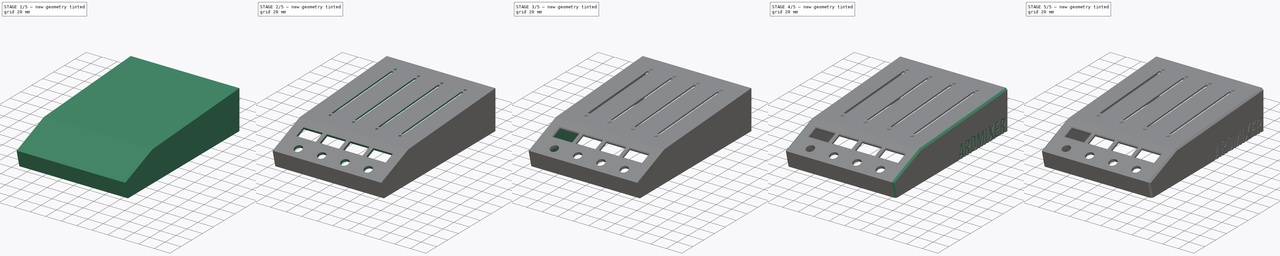
[diagram: build sequence overview — one tinted view per stage of 5, left to right]
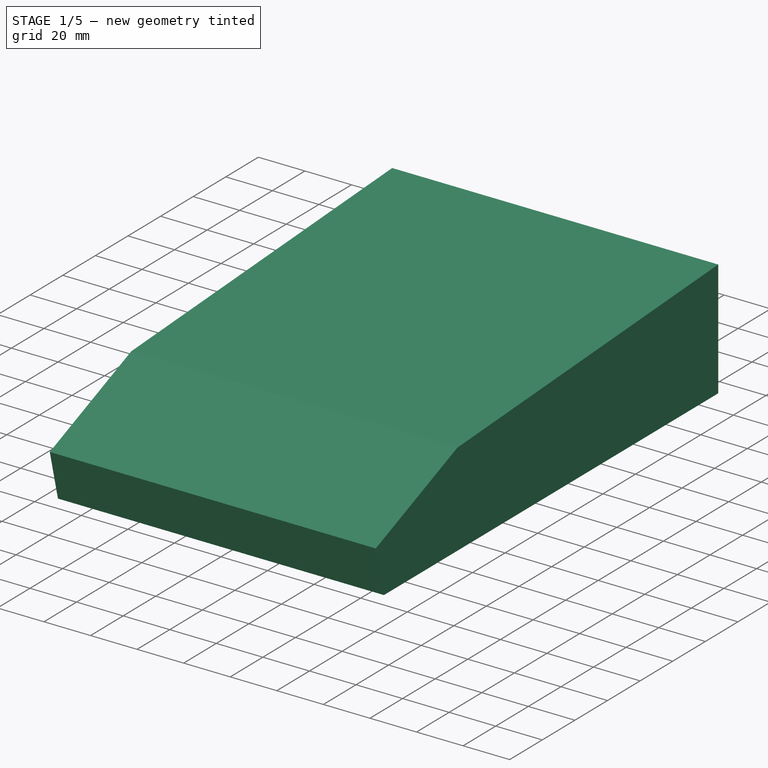
[diagram: stage 1 of 5 — iso view after this stage's code; geometry added in this stage tinted green]
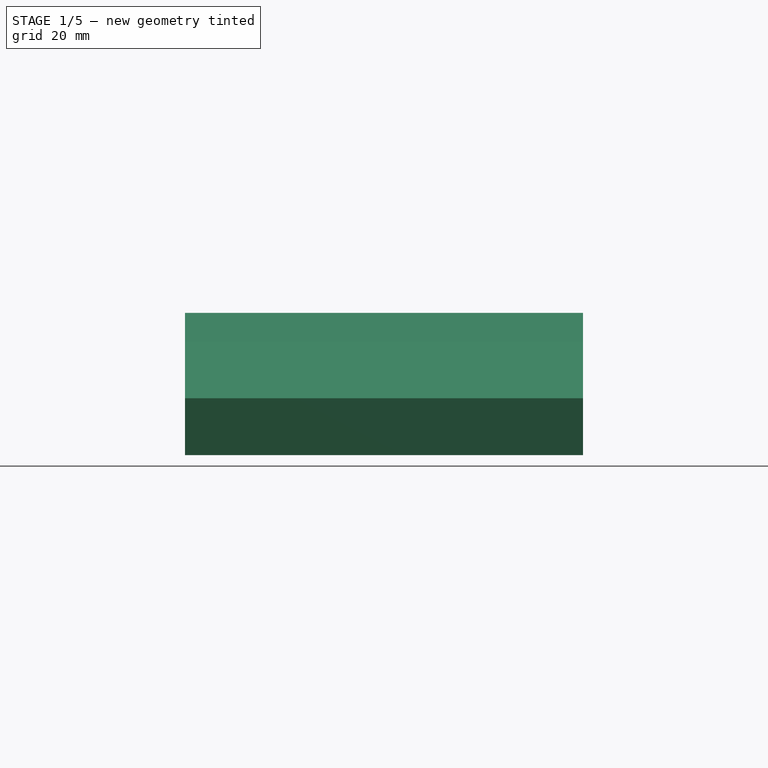
[diagram: stage 1 of 5 — front view after this stage's code; geometry added in this stage tinted green]
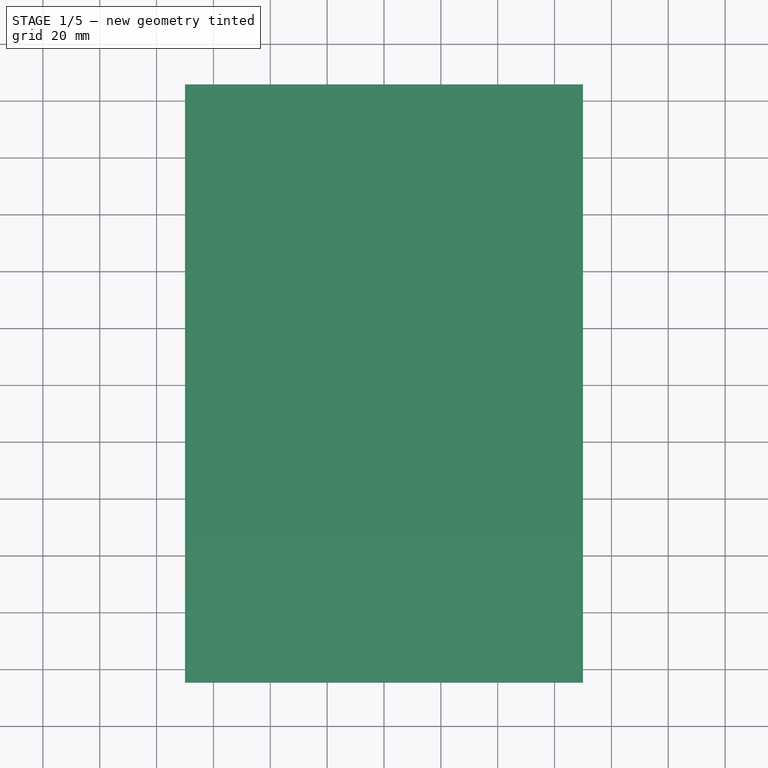
[diagram: stage 1 of 5 — top view after this stage's code; geometry added in this stage tinted green]
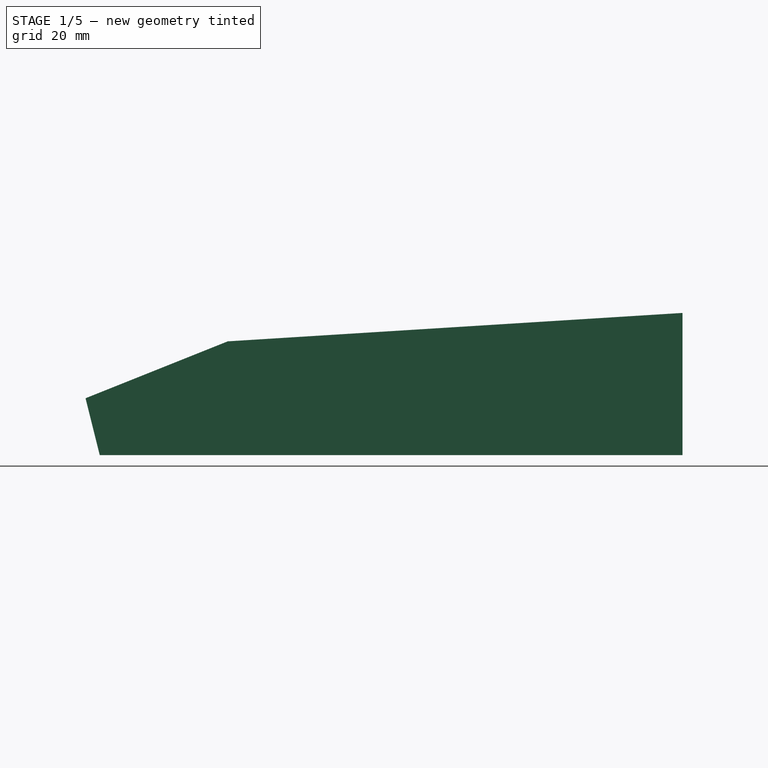
[diagram: stage 1 of 5 — right view after this stage's code; geometry added in this stage tinted green]
FCSTD DOCUMENT  (FreeCAD 0.19R24291 (Git))
Label: top_shell_v2
License: All rights reserved
LicenseURL: http://en.wikipedia.org/wiki/All_rights_reserved
objects: Sketcher::SketchObject×15, PartDesign::Pocket×13, PartDesign::Pad×4, PartDesign::Chamfer×3, Part::Part2DObjectPython×2, PartDesign::Fillet×1, PartDesign::Body×1
note: 60 computed .brp shape members not serialized (recipe doc carries the construction recipe); baked Part::Feature solids carry a one-line shape summary decoded from their .brp

FEATURE [Sketcher::SketchObject] Sketch
  FullyConstrained = true
  MapMode = 5
  Support = -> [XY_Plane]
  sketch-geometry (4):
    g0: LineSegment StartX=-70 StartY=105 StartZ=0 EndX=70 EndY=105 EndZ=0
    g1: LineSegment StartX=70 StartY=105 StartZ=0 EndX=70 EndY=-105 EndZ=0
    g2: LineSegment StartX=70 StartY=-105 StartZ=0 EndX=-70 EndY=-105 EndZ=0
    g3: LineSegment StartX=-70 StartY=-105 StartZ=0 EndX=-70 EndY=105 EndZ=0
  constraints (12):
    c: Coincident(g0,g1)
    c: Coincident(g1,g2)
    c: Coincident(g2,g3)
    c: Coincident(g3,g0)
    c: Horizontal(g0)
    c: Horizontal(g2)
    c: Vertical(g1)
    c: Vertical(g3)
    c: DistanceY(g1,g1) = 210
    c: DistanceX(g0,g0) = 140
    c: DistanceX(g0,g-1) = 70
    c: DistanceY(g-1,g0) = 105
FEATURE [PartDesign::Pad] Pad
  Direction = (1,1,1)
  Length = 50
  Length2 = 100
  Profile = -> Sketch
  Type = 0
FEATURE [Sketcher::SketchObject] Sketch001
  ExternalGeometry = -> [Pad]
  FullyConstrained = false
  MapMode = 5
  Placement = pos=(-70,0,0) rot=(0.57735,-0.57735,-0.57735;2.0944rad)
  Support = -> [Pad]
  sketch-geometry (4):
    g0: LineSegment StartX=-105 StartY=50 StartZ=0 EndX=55 EndY=40 EndZ=0
    g1: LineSegment StartX=55 StartY=40 StartZ=0 EndX=105 EndY=20 EndZ=0
    g2: LineSegment StartX=105 StartY=20 StartZ=0 EndX=105 EndY=50 EndZ=0
    g3: LineSegment StartX=105 StartY=50 StartZ=0 EndX=-105 EndY=50 EndZ=0
  constraints (10):
    c: Coincident(g0,g1)
    c: Coincident(g1,g2)
    c: Vertical(g2)
    c: Coincident(g2,g3)
    c: Coincident(g3,g0)
    c: Horizontal(g3)
    c: DistanceY(g0,g-3) = 0
    c: DistanceX(g-3,g0) = 0
    c: DistanceX(g2,g-4) = 0
    c: DistanceX(g0,g0) = 160
FEATURE [PartDesign::Pocket] Pocket
  BaseFeature = -> Pad
  Length = 5
  Length2 = 100
  Profile = -> Sketch001
  Type = 1
FEATURE [Sketcher::SketchObject] Sketch002
  ExternalGeometry = -> [Pocket]
  FullyConstrained = true
  MapMode = 5
  Placement = pos=(-70,0,0) rot=(0.57735,-0.57735,-0.57735;2.0944rad)
  Support = -> [Pocket]
  sketch-geometry (3):
    g0: LineSegment StartX=105 StartY=20 StartZ=0 EndX=100 EndY=0 EndZ=0
    g1: LineSegment StartX=100 StartY=0 StartZ=0 EndX=105 EndY=0 EndZ=0
    g2: LineSegment StartX=105 StartY=0 StartZ=0 EndX=105 EndY=20 EndZ=0
  constraints (7):
    c: Coincident(g0,g-3)
    c: PointOnObject(g0,g-1)
    c: Coincident(g0,g1)
    c: Coincident(g1,g-4)
    c: Coincident(g1,g2)
    c: Coincident(g2,g0)
    c: DistanceX(g1,g1) = 5
FEATURE [PartDesign::Pocket] Pocket001
  BaseFeature = -> Pocket
  Length = 5
  Length2 = 100
  Profile = -> Sketch002
  Type = 1
FEATURE [Sketcher::SketchObject] Sketch003
  ExternalGeometry = -> [Pocket001]
  FullyConstrained = false
  MapMode = 5
  Placement = pos=(-70,0,0) rot=(0.57735,-0.57735,-0.57735;2.0944rad)
  Support = -> [Pocket001]
  sketch-geometry (5):
    g0: LineSegment StartX=-105 StartY=46 StartZ=0 EndX=55 EndY=36 EndZ=0
    g1: LineSegment StartX=55 StartY=36 StartZ=0 EndX=100.455 EndY=17.8182 EndZ=0
    g2: LineSegment StartX=100.455 StartY=17.8182 StartZ=0 EndX=96 EndY=0 EndZ=0
    g3: LineSegment StartX=96 StartY=0 StartZ=0 EndX=-105 EndY=0 EndZ=0
    g4: LineSegment StartX=-105 StartY=0 StartZ=0 EndX=-105 EndY=46 EndZ=0
  constraints (13):
    c: DistanceX(g-3,g0) = 0
    c: Parallel(g-3,g0)
    c: Distance(g0,g-3) = 4
    c: Coincident(g1,g0)
    c: Parallel(g-4,g1)
    c: Coincident(g2,g1)
    c: PointOnObject(g2,g-6)
    c: Parallel(g2,g-5)
    c: Coincident(g3,g2)
    c: Coincident(g3,g-7)
    c: Coincident(g4,g3)
    c: Coincident(g4,g0)
    c: DistanceX(g2,g-6) = 4
FEATURE [PartDesign::Pocket] Pocket002
  BaseFeature = -> Pocket001
  Length = 136
  Length2 = 100
  Profile = -> Sketch003
  Type = 0
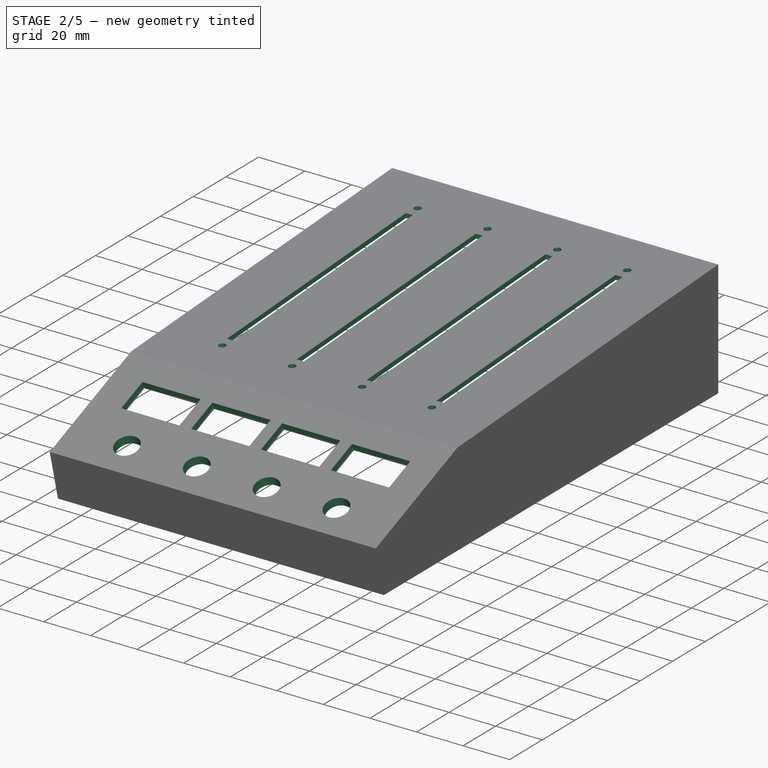
[diagram: stage 2 of 5 — iso view after this stage's code; geometry added in this stage tinted green]
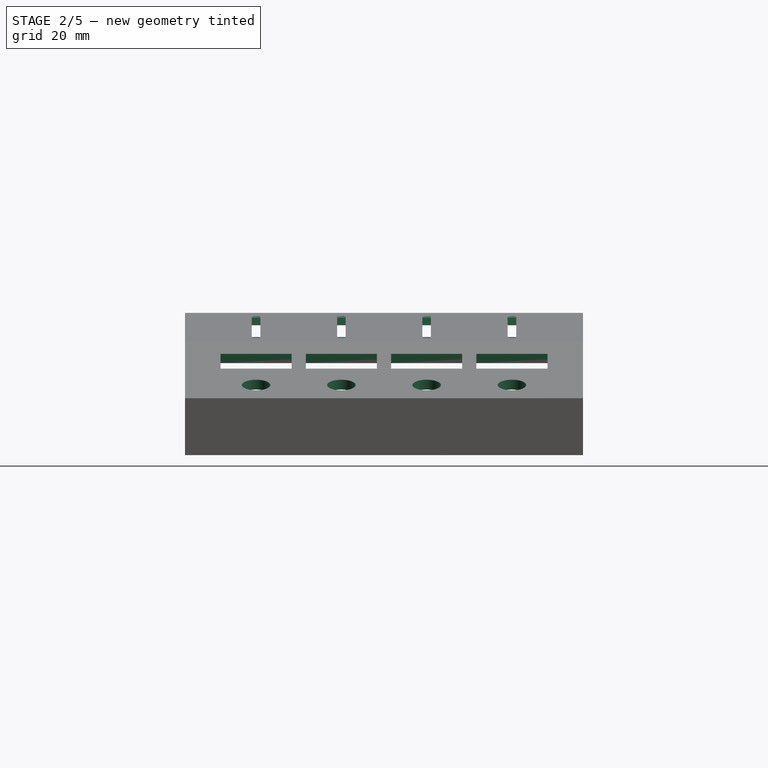
[diagram: stage 2 of 5 — front view after this stage's code; geometry added in this stage tinted green]
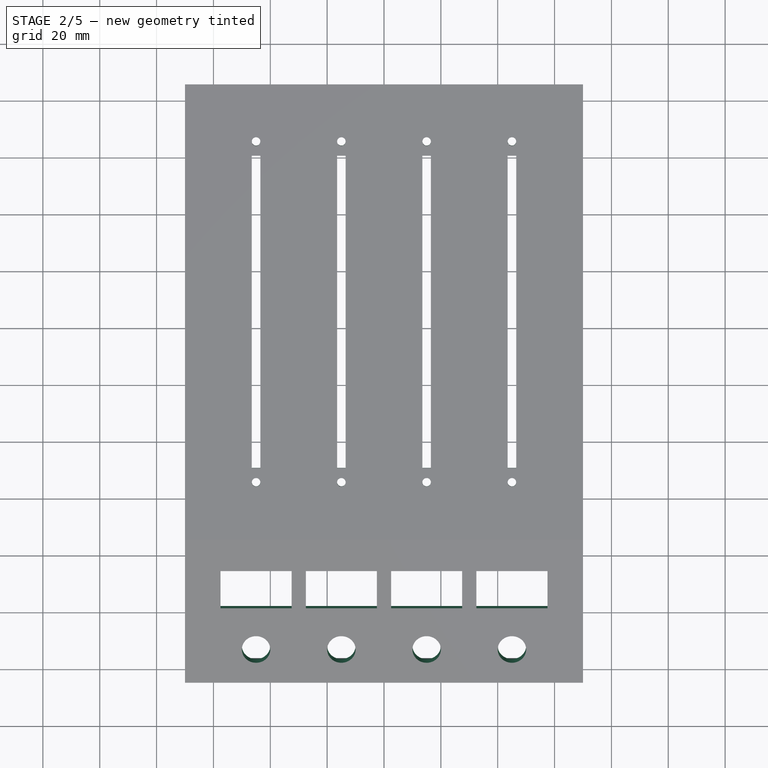
[diagram: stage 2 of 5 — top view after this stage's code; geometry added in this stage tinted green]
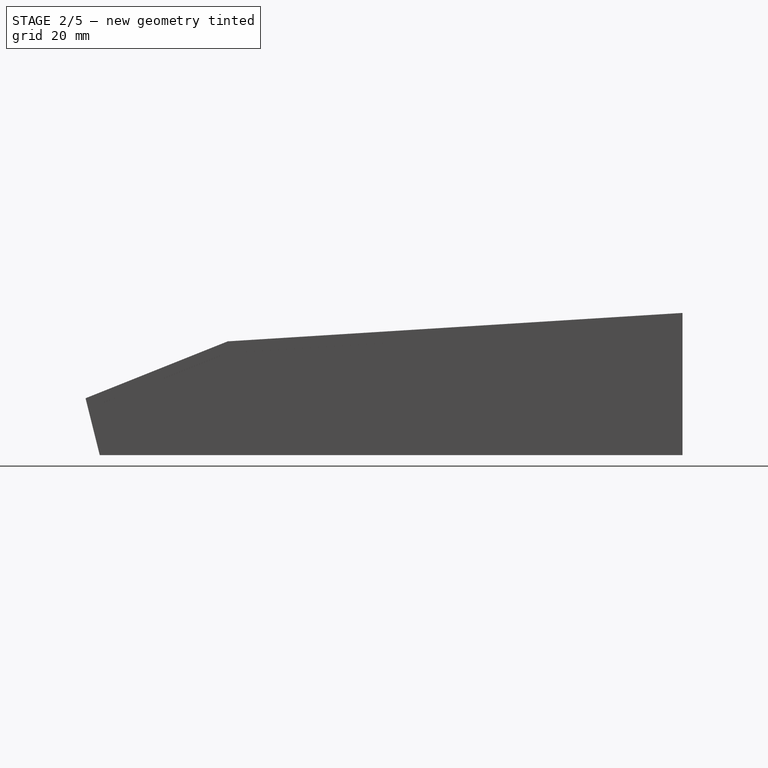
[diagram: stage 2 of 5 — right view after this stage's code; geometry added in this stage tinted green]
FEATURE [Sketcher::SketchObject] Sketch004
  ExternalGeometry = -> [Pocket002]
  FullyConstrained = true
  MapMode = 5
  Placement = pos=(0,-2.70428,43.2685) rot=(1,0,0;0.062419rad)
  Support = -> [Pocket002]
  sketch-geometry (31):
    g0: GeomPoint X=0 Y=27.7583 Z=0
    g1: GeomPoint X=0 Y=107.914 Z=0
    g2: GeomPoint X=0 Y=-52.3978 Z=0
    g3: GeomPoint X=15 Y=27.7583 Z=0
    g4: GeomPoint X=45 Y=27.7583 Z=0
    g5: GeomPoint X=-15 Y=27.7583 Z=0
    g6: GeomPoint X=-45 Y=27.7583 Z=0
    g7: LineSegment StartX=-46.5 StartY=82.7583 StartZ=0 EndX=-43.5 EndY=82.7583 EndZ=0
    g8: LineSegment StartX=-43.5 StartY=82.7583 StartZ=0 EndX=-43.5 EndY=-27.2417 EndZ=0
    g9: LineSegment StartX=-43.5 StartY=-27.2417 StartZ=0 EndX=-46.5 EndY=-27.2417 EndZ=0
    g10: LineSegment StartX=-46.5 StartY=-27.2417 StartZ=0 EndX=-46.5 EndY=82.7583 EndZ=0
    g11: LineSegment StartX=-16.5 StartY=82.7583 StartZ=0 EndX=-13.5 EndY=82.7583 EndZ=0
    g12: LineSegment StartX=-13.5 StartY=82.7583 StartZ=0 EndX=-13.5 EndY=-27.2417 EndZ=0
    g13: LineSegment StartX=-13.5 StartY=-27.2417 StartZ=0 EndX=-16.5 EndY=-27.2417 EndZ=0
    g14: LineSegment StartX=-16.5 StartY=-27.2417 StartZ=0 EndX=-16.5 EndY=82.7583 EndZ=0
    g15: LineSegment StartX=13.5 StartY=82.7583 StartZ=0 EndX=16.5 EndY=82.7583 EndZ=0
    g16: LineSegment StartX=16.5 StartY=82.7583 StartZ=0 EndX=16.5 EndY=-27.2417 EndZ=0
    g17: LineSegment StartX=16.5 StartY=-27.2417 StartZ=0 EndX=13.5 EndY=-27.2417 EndZ=0
    g18: LineSegment StartX=13.5 StartY=-27.2417 StartZ=0 EndX=13.5 EndY=82.7583 EndZ=0
    g19: LineSegment StartX=43.5 StartY=82.7583 StartZ=0 EndX=46.5 EndY=82.7583 EndZ=0
    g20: LineSegment StartX=46.5 StartY=82.7583 StartZ=0 EndX=46.5 EndY=-27.2417 EndZ=0
    g21: LineSegment StartX=46.5 StartY=-27.2417 StartZ=0 EndX=43.5 EndY=-27.2417 EndZ=0
    g22: LineSegment StartX=43.5 StartY=-27.2417 StartZ=0 EndX=43.5 EndY=82.7583 EndZ=0
    g23: Circle CenterX=-45 CenterY=87.7583 CenterZ=0 NormalX=0 NormalY=0 NormalZ=1 AngleXU=0 Radius=1.5
    g24: Circle CenterX=-15 CenterY=87.7583 CenterZ=0 NormalX=0 NormalY=0 NormalZ=1 AngleXU=0 Radius=1.5
    g25: Circle CenterX=15 CenterY=87.7583 CenterZ=0 NormalX=0 NormalY=0 NormalZ=1 AngleXU=0 Radius=1.5
    g26: Circle CenterX=45 CenterY=87.7583 CenterZ=0 NormalX=0 NormalY=0 NormalZ=1 AngleXU=0 Radius=1.5
    g27: Circle CenterX=-45 CenterY=-32.2417 CenterZ=0 NormalX=0 NormalY=0 NormalZ=1 AngleXU=0 Radius=1.5
    g28: Circle CenterX=-15 CenterY=-32.2417 CenterZ=0 NormalX=0 NormalY=0 NormalZ=1 AngleXU=0 Radius=1.5
    g29: Circle CenterX=15 CenterY=-32.2417 CenterZ=0 NormalX=0 NormalY=0 NormalZ=1 AngleXU=0 Radius=1.5
    g30: Circle CenterX=45 CenterY=-32.2417 CenterZ=0 NormalX=0 NormalY=0 NormalZ=1 AngleXU=0 Radius=1.5
  constraints (85):
    c: PointOnObject(g0,g-2)
    c: PointOnObject(g1,g-3)
    c: PointOnObject(g2,g-4)
    c: PointOnObject(g2,g-2)
    c: Symmetric(g1,g2,g0)
    c: DistanceY(g3,g0) = 0
    c: DistanceY(g4,g3) = 0
    c: DistanceY(g5,g0) = 0
    c: DistanceY(g6,g5) = 0
    c: DistanceX(g3,g4) = 30
    c: DistanceX(g0,g3) = 15
    c: DistanceX(g5,g0) = 15
    c: DistanceX(g6,g5) = 30
    c: Coincident(g7,g8)
    c: Coincident(g8,g9)
    c: Coincident(g9,g10)
    c: Coincident(g10,g7)
    c: Horizontal(g7)
    c: Horizontal(g9)
    c: Vertical(g8)
    c: Vertical(g10)
    c: Coincident(g11,g12)
    c: Coincident(g12,g13)
    c: Coincident(g13,g14)
    c: Coincident(g14,g11)
    c: Horizontal(g11)
    c: Horizontal(g13)
    c: Vertical(g12)
    c: Vertical(g14)
    c: Coincident(g15,g16)
    c: Coincident(g16,g17)
    c: Coincident(g17,g18)
    c: Coincident(g18,g15)
    c: Horizontal(g15)
    c: Horizontal(g17)
    c: Vertical(g16)
    c: Vertical(g18)
    c: Coincident(g19,g20)
    c: Coincident(g20,g21)
    c: Coincident(g21,g22)
    c: Coincident(g22,g19)
    c: Horizontal(g19)
    c: Horizontal(g21)
    c: Vertical(g20)
    c: Vertical(g22)
    c: DistanceY(g6,g23) = 60
    c: DistanceY(g5,g24) = 60
    c: DistanceY(g3,g25) = 60
    c: DistanceY(g4,g26) = 60
    c: DistanceY(g30,g4) = 60
    c: DistanceY(g29,g3) = 60
    c: DistanceY(g28,g5) = 60
    c: DistanceY(g27,g6) = 60
    c: DistanceX(g23,g6) = 0
    c: DistanceX(g6,g27) = 0
    c: DistanceX(g28,g5) = 0
    c: DistanceX(g24,g5) = 0
    c: DistanceX(g25,g3) = 0
    c: DistanceX(g3,g29) = 0
    c: DistanceX(g30,g4) = 0
    c: DistanceX(g4,g26) = 0
    c: Diameter(g26) = 3
    c: Diameter(g25) = 3
    c: Diameter(g24) = 3
    c: Diameter(g23) = 3
    c: Diameter(g27) = 3
    c: Diameter(g28) = 3
    c: Diameter(g29) = 3
    c: Diameter(g30) = 3
    c: DistanceX(g7,g6) = 1.5
    c: DistanceX(g11,g5) = 1.5
    c: DistanceX(g15,g3) = 1.5
    c: DistanceX(g19,g4) = 1.5
    c: DistanceY(g13,g5) = 55
    c: DistanceY(g9,g6) = 55
    c: DistanceY(g6,g7) = 55
    c: DistanceY(g5,g11) = 55
    c: DistanceY(g3,g15) = 55
    c: DistanceY(g17,g3) = 55
    c: DistanceY(g21,g4) = 55
    c: DistanceY(g4,g19) = 55
    c: DistanceX(g19,g19) = 3
    c: DistanceX(g15,g15) = 3
    c: DistanceX(g11,g11) = 3
    c: DistanceX(g7,g7) = 3
FEATURE [PartDesign::Pocket] Pocket003
  BaseFeature = -> Pocket002
  Length = 5
  Length2 = 100
  Profile = -> Sketch004
  Type = 1
FEATURE [Sketcher::SketchObject] Sketch005
  ExternalGeometry = -> [Pocket003]
  FullyConstrained = true
  MapMode = 5
  Placement = pos=(0,-2.45525,39.284) rot=(1,0,0;3.20401rad)
  Support = -> [Pocket003]
  sketch-geometry (21):
    g0: GeomPoint X=0 Y=-27.7583 Z=0
    g1: GeomPoint X=15 Y=-27.7583 Z=0
    g2: GeomPoint X=45 Y=-27.7583 Z=0
    g3: GeomPoint X=-15 Y=-27.7583 Z=0
    g4: GeomPoint X=-45 Y=-27.7583 Z=0
    g5: LineSegment StartX=-54.5 StartY=45.2417 StartZ=0 EndX=-35.5 EndY=45.2417 EndZ=0
    g6: LineSegment StartX=-35.5 StartY=45.2417 StartZ=0 EndX=-35.5 EndY=-102.258 EndZ=0
    g7: LineSegment StartX=-35.5 StartY=-102.258 StartZ=0 EndX=-54.5 EndY=-102.258 EndZ=0
    g8: LineSegment StartX=-54.5 StartY=-102.258 StartZ=0 EndX=-54.5 EndY=45.2417 EndZ=0
    g9: LineSegment StartX=-24.5 StartY=45.2417 StartZ=0 EndX=-5.5 EndY=45.2417 EndZ=0
    g10: LineSegment StartX=-5.5 StartY=45.2417 StartZ=0 EndX=-5.5 EndY=-102.258 EndZ=0
    g11: LineSegment StartX=-5.5 StartY=-102.258 StartZ=0 EndX=-24.5 EndY=-102.258 EndZ=0
    g12: LineSegment StartX=-24.5 StartY=-102.258 StartZ=0 EndX=-24.5 EndY=45.2417 EndZ=0
    g13: LineSegment StartX=5.5 StartY=45.2417 StartZ=0 EndX=24.5 EndY=45.2417 EndZ=0
    g14: LineSegment StartX=24.5 StartY=45.2417 StartZ=0 EndX=24.5 EndY=-102.258 EndZ=0
    g15: LineSegment StartX=24.5 StartY=-102.258 StartZ=0 EndX=5.5 EndY=-102.258 EndZ=0
    g16: LineSegment StartX=5.5 StartY=-102.258 StartZ=0 EndX=5.5 EndY=45.2417 EndZ=0
    g17: LineSegment StartX=35.5 StartY=45.2417 StartZ=0 EndX=54.5 EndY=45.2417 EndZ=0
    g18: LineSegment StartX=54.5 StartY=45.2417 StartZ=0 EndX=54.5 EndY=-102.258 EndZ=0
    g19: LineSegment StartX=54.5 StartY=-102.258 StartZ=0 EndX=35.5 EndY=-102.258 EndZ=0
    g20: LineSegment StartX=35.5 StartY=-102.258 StartZ=0 EndX=35.5 EndY=45.2417 EndZ=0
  constraints (58):
    c: PointOnObject(g0,g-2)
    c: DistanceY(g0,g-4) = 55
    c: DistanceX(g0,g1) = 15
    c: DistanceX(g1,g2) = 30
    c: DistanceX(g3,g0) = 15
    c: DistanceX(g4,g3) = 30
    c: DistanceY(g3,g0) = 0
    c: DistanceY(g1,g0) = 0
    c: DistanceY(g1,g2) = 0
    c: DistanceY(g3,g4) = 0
    c: Coincident(g5,g6)
    c: Coincident(g6,g7)
    c: Coincident(g7,g8)
    c: Coincident(g8,g5)
    c: Horizontal(g5)
    c: Horizontal(g7)
    c: Vertical(g6)
    c: Vertical(g8)
    c: Coincident(g9,g10)
    c: Coincident(g10,g11)
    c: Coincident(g11,g12)
    c: Coincident(g12,g9)
    c: Horizontal(g9)
    c: Horizontal(g11)
    c: Vertical(g10)
    c: Vertical(g12)
    c: Coincident(g13,g14)
    c: Coincident(g14,g15)
    c: Coincident(g15,g16)
    c: Coincident(g16,g13)
    c: Horizontal(g13)
    c: Horizontal(g15)
    c: Vertical(g14)
    c: Vertical(g16)
    c: Coincident(g17,g18)
    c: Coincident(g18,g19)
    c: Coincident(g19,g20)
    c: Coincident(g20,g17)
    c: Horizontal(g17)
    c: Horizontal(g19)
    c: Vertical(g18)
    c: Vertical(g20)
    c: DistanceX(g13,g1) = 9.5
    c: DistanceX(g17,g2) = 9.5
    c: DistanceX(g9,g3) = 9.5
    c: DistanceX(g5,g4) = 9.5
    c: DistanceX(g5,g5) = 19
    c: DistanceX(g9,g9) = 19
    c: DistanceX(g13,g13) = 19
    c: DistanceX(g17,g17) = 19
    c: DistanceY(g18,g2) = 74.5
    c: DistanceY(g14,g1) = 74.5
    c: DistanceY(g10,g3) = 74.5
    c: DistanceY(g6,g4) = 74.5
    c: DistanceY(g4,g5) = 73
    c: DistanceY(g3,g9) = 73
    c: DistanceY(g1,g13) = 73
    c: DistanceY(g2,g17) = 73
FEATURE [PartDesign::Pocket] Pocket004
  BaseFeature = -> Pocket003
  Length = 2
  Length2 = 100
  Profile = -> Sketch005
  Type = 0
FEATURE [Sketcher::SketchObject] Sketch006
  ExternalGeometry = -> [Pocket004]
  FullyConstrained = true
  MapMode = 5
  Placement = pos=(0,-21.3793,53.4483) rot=(1,0,0;0.380506rad)
  Support = -> [Pocket004]
  sketch-geometry (29):
    g0: GeomPoint X=0 Y=-77.5622 Z=0
    g1: GeomPoint X=15 Y=-77.5622 Z=0
    g2: GeomPoint X=45 Y=-77.5622 Z=0
    g3: GeomPoint X=-15 Y=-77.5622 Z=0
    g4: GeomPoint X=-45 Y=-77.5622 Z=0
    g5: Circle CenterX=-45 CenterY=-77.5622 CenterZ=0 NormalX=0 NormalY=0 NormalZ=1 AngleXU=0 Radius=5
    g6: Circle CenterX=-15 CenterY=-77.5622 CenterZ=0 NormalX=0 NormalY=0 NormalZ=1 AngleXU=0 Radius=5
    g7: Circle CenterX=15 CenterY=-77.5622 CenterZ=0 NormalX=0 NormalY=0 NormalZ=1 AngleXU=0 Radius=5
    g8: Circle CenterX=45 CenterY=-77.5622 CenterZ=0 NormalX=0 NormalY=0 NormalZ=1 AngleXU=0 Radius=5
    g9: GeomPoint X=-45 Y=-55.0622 Z=0
    g10: GeomPoint X=-15 Y=-55.0622 Z=0
    g11: GeomPoint X=15 Y=-55.0622 Z=0
    g12: GeomPoint X=45 Y=-55.0622 Z=0
    g13: LineSegment StartX=-57.5 StartY=-48.0622 StartZ=0 EndX=-32.5 EndY=-48.0622 EndZ=0
    g14: LineSegment StartX=-32.5 StartY=-48.0622 StartZ=0 EndX=-32.5 EndY=-62.0622 EndZ=0
    g15: LineSegment StartX=-32.5 StartY=-62.0622 StartZ=0 EndX=-57.5 EndY=-62.0622 EndZ=0
    g16: LineSegment StartX=-57.5 StartY=-62.0622 StartZ=0 EndX=-57.5 EndY=-48.0622 EndZ=0
    g17: LineSegment StartX=-27.5 StartY=-48.0622 StartZ=0 EndX=-2.5 EndY=-48.0622 EndZ=0
    g18: LineSegment StartX=-2.5 StartY=-48.0622 StartZ=0 EndX=-2.5 EndY=-62.0622 EndZ=0
    g19: LineSegment StartX=-2.5 StartY=-62.0622 StartZ=0 EndX=-27.5 EndY=-62.0622 EndZ=0
    g20: LineSegment StartX=-27.5 StartY=-62.0622 StartZ=0 EndX=-27.5 EndY=-48.0622 EndZ=0
    g21: LineSegment StartX=2.5 StartY=-48.0622 StartZ=0 EndX=27.5 EndY=-48.0622 EndZ=0
    g22: LineSegment StartX=27.5 StartY=-48.0622 StartZ=0 EndX=27.5 EndY=-62.0622 EndZ=0
    g23: LineSegment StartX=27.5 StartY=-62.0622 StartZ=0 EndX=2.5 EndY=-62.0622 EndZ=0
    g24: LineSegment StartX=2.5 StartY=-62.0622 StartZ=0 EndX=2.5 EndY=-48.0622 EndZ=0
    g25: LineSegment StartX=32.5 StartY=-48.0622 StartZ=0 EndX=57.5 EndY=-48.0622 EndZ=0
    g26: LineSegment StartX=57.5 StartY=-48.0622 StartZ=0 EndX=57.5 EndY=-62.0622 EndZ=0
    g27: LineSegment StartX=57.5 StartY=-62.0622 StartZ=0 EndX=32.5 EndY=-62.0622 EndZ=0
    g28: LineSegment StartX=32.5 StartY=-62.0622 StartZ=0 EndX=32.5 EndY=-48.0622 EndZ=0
  constraints (74):
    c: PointOnObject(g0,g-2)
    c: DistanceX(g3,g0) = 15
    c: DistanceX(g4,g3) = 30
    c: DistanceX(g0,g1) = 15
    c: DistanceX(g1,g2) = 30
    c: DistanceY(g1,g0) = 0
    c: DistanceY(g1,g2) = 0
    c: DistanceY(g3,g0) = 0
    c: DistanceY(g3,g4) = 0
    c: Coincident(g5,g4)
    c: Coincident(g6,g3)
    c: Coincident(g7,g1)
    c: Coincident(g8,g2)
    c: Diameter(g8) = 10
    c: Diameter(g7) = 10
    c: Diameter(g6) = 10
    c: Diameter(g5) = 10
    c: DistanceY(g5,g9) = 22.5
    c: DistanceY(g9,g10) = 0
    c: DistanceY(g10,g11) = 0
    c: DistanceY(g11,g12) = 0
    c: DistanceX(g9,g5) = 0
    c: DistanceX(g9,g10) = 30
    c: DistanceX(g10,g11) = 30
    c: DistanceX(g11,g12) = 30
    c: Coincident(g13,g14)
    c: Coincident(g14,g15)
    c: Coincident(g15,g16)
    c: Coincident(g16,g13)
    c: Horizontal(g13)
    c: Horizontal(g15)
    c: Vertical(g14)
    c: Vertical(g16)
    c: Coincident(g17,g18)
    c: Coincident(g18,g19)
    c: Coincident(g19,g20)
    c: Coincident(g20,g17)
    c: Horizontal(g17)
    c: Horizontal(g19)
    c: Vertical(g18)
    c: Vertical(g20)
    c: Coincident(g21,g22)
    c: Coincident(g22,g23)
    c: Coincident(g23,g24)
    c: Coincident(g24,g21)
    c: Horizontal(g21)
    c: Horizontal(g23)
    c: Vertical(g22)
    c: Vertical(g24)
    c: Coincident(g25,g26)
    c: Coincident(g26,g27)
    c: Coincident(g27,g28)
    c: Coincident(g28,g25)
    c: Horizontal(g25)
    c: Horizontal(g27)
    c: Vertical(g26)
    c: Vertical(g28)
    c: DistanceX(g13,g9) = 12.5
    c: DistanceX(g17,g10) = 12.5
    c: DistanceX(g21,g11) = 12.5
    c: DistanceX(g25,g12) = 12.5
    c: DistanceX(g21,g21) = 25
    c: DistanceX(g25,g25) = 25
    c: DistanceX(g17,g17) = 25
    c: DistanceX(g13,g13) = 25
    c: DistanceY(g9,g13) = 7
    c: DistanceY(g10,g17) = 7
    c: DistanceY(g11,g21) = 7
    c: DistanceY(g12,g25) = 7
    c: DistanceY(g16,g16) = 14
    c: DistanceY(g20,g20) = 14
    c: DistanceY(g24,g24) = 14
    c: DistanceY(g28,g28) = 14
    c: Distance(g0,g-3) = 12.5
FEATURE [PartDesign::Pocket] Pocket005
  BaseFeature = -> Pocket004
  Length = 5
  Length2 = 100
  Profile = -> Sketch006
  Type = 1
FEATURE [Sketcher::SketchObject] Sketch007
  ExternalGeometry = -> [Pocket005]
  FullyConstrained = true
  MapMode = 5
  Placement = pos=(0,-20,50) rot=(1,0,0;3.5221rad)
  Support = -> [Pocket005]
  sketch-geometry (21):
    g0: GeomPoint X=0 Y=55.0622 Z=0
    g1: GeomPoint X=15 Y=55.0622 Z=0
    g2: GeomPoint X=45 Y=55.0622 Z=0
    g3: GeomPoint X=-15 Y=55.0622 Z=0
    g4: GeomPoint X=-45 Y=55.0622 Z=0
    g5: LineSegment StartX=58 StartY=47.5622 StartZ=0 EndX=32 EndY=47.5622 EndZ=0
    g6: LineSegment StartX=32 StartY=47.5622 StartZ=0 EndX=32 EndY=65.5622 EndZ=0
    g7: LineSegment StartX=32 StartY=65.5622 StartZ=0 EndX=58 EndY=65.5622 EndZ=0
    g8: LineSegment StartX=58 StartY=65.5622 StartZ=0 EndX=58 EndY=47.5622 EndZ=0
    g9: LineSegment StartX=28 StartY=47.5622 StartZ=0 EndX=2 EndY=47.5622 EndZ=0
    g10: LineSegment StartX=2 StartY=47.5622 StartZ=0 EndX=2 EndY=65.5622 EndZ=0
    g11: LineSegment StartX=2 StartY=65.5622 StartZ=0 EndX=28 EndY=65.5622 EndZ=0
    g12: LineSegment StartX=28 StartY=65.5622 StartZ=0 EndX=28 EndY=47.5622 EndZ=0
    g13: LineSegment StartX=-2 StartY=47.5622 StartZ=0 EndX=-28 EndY=47.5622 EndZ=0
    g14: LineSegment StartX=-28 StartY=47.5622 StartZ=0 EndX=-28 EndY=65.5622 EndZ=0
    g15: LineSegment StartX=-28 StartY=65.5622 StartZ=0 EndX=-2 EndY=65.5622 EndZ=0
    g16: LineSegment StartX=-2 StartY=65.5622 StartZ=0 EndX=-2 EndY=47.5622 EndZ=0
    g17: LineSegment StartX=-32 StartY=47.5622 StartZ=0 EndX=-58 EndY=47.5622 EndZ=0
    g18: LineSegment StartX=-58 StartY=47.5622 StartZ=0 EndX=-58 EndY=65.5622 EndZ=0
    g19: LineSegment StartX=-58 StartY=65.5622 StartZ=0 EndX=-32 EndY=65.5622 EndZ=0
    g20: LineSegment StartX=-32 StartY=65.5622 StartZ=0 EndX=-32 EndY=47.5622 EndZ=0
  constraints (58):
    c: PointOnObject(g0,g-2)
    c: DistanceX(g3,g0) = 15
    c: DistanceX(g4,g3) = 30
    c: DistanceX(g0,g1) = 15
    c: DistanceX(g1,g2) = 30
    c: DistanceY(g0,g1) = 0
    c: DistanceY(g2,g1) = 0
    c: DistanceY(g0,g3) = 0
    c: DistanceY(g4,g3) = 0
    c: Coincident(g5,g6)
    c: Coincident(g6,g7)
    c: Coincident(g7,g8)
    c: Coincident(g8,g5)
    c: Horizontal(g5)
    c: Horizontal(g7)
    c: Vertical(g6)
    c: Vertical(g8)
    c: Coincident(g9,g10)
    c: Coincident(g10,g11)
    c: Coincident(g11,g12)
    c: Coincident(g12,g9)
    c: Horizontal(g9)
    c: Horizontal(g11)
    c: Vertical(g10)
    c: Vertical(g12)
    c: Coincident(g13,g14)
    c: Coincident(g14,g15)
    c: Coincident(g15,g16)
    c: Coincident(g16,g13)
    c: Horizontal(g13)
    c: Horizontal(g15)
    c: Vertical(g14)
    c: Vertical(g16)
    c: Coincident(g17,g18)
    c: Coincident(g18,g19)
    c: Coincident(g19,g20)
    c: Coincident(g20,g17)
    c: Horizontal(g17)
    c: Horizontal(g19)
    c: Vertical(g18)
    c: Vertical(g20)
    c: DistanceY(g2,g7) = 10.5
    c: DistanceY(g1,g11) = 10.5
    c: DistanceY(g3,g15) = 10.5
    c: DistanceY(g4,g19) = 10.5
    c: DistanceY(g-3,g0) = 7
    c: DistanceY(g5,g2) = 7.5
    c: DistanceY(g9,g1) = 7.5
    c: DistanceY(g13,g3) = 7.5
    c: DistanceY(g17,g4) = 7.5
    c: DistanceX(g18,g4) = 13
    c: DistanceX(g4,g19) = 13
    c: DistanceX(g14,g3) = 13
    c: DistanceX(g3,g15) = 13
    c: DistanceX(g10,g1) = 13
    c: DistanceX(g1,g11) = 13
    c: DistanceX(g6,g2) = 13
    c: DistanceX(g2,g7) = 13
FEATURE [PartDesign::Pocket] Pocket006
  BaseFeature = -> Pocket005
  Length = 1.5
  Length2 = 100
  Profile = -> Sketch007
  Type = 0
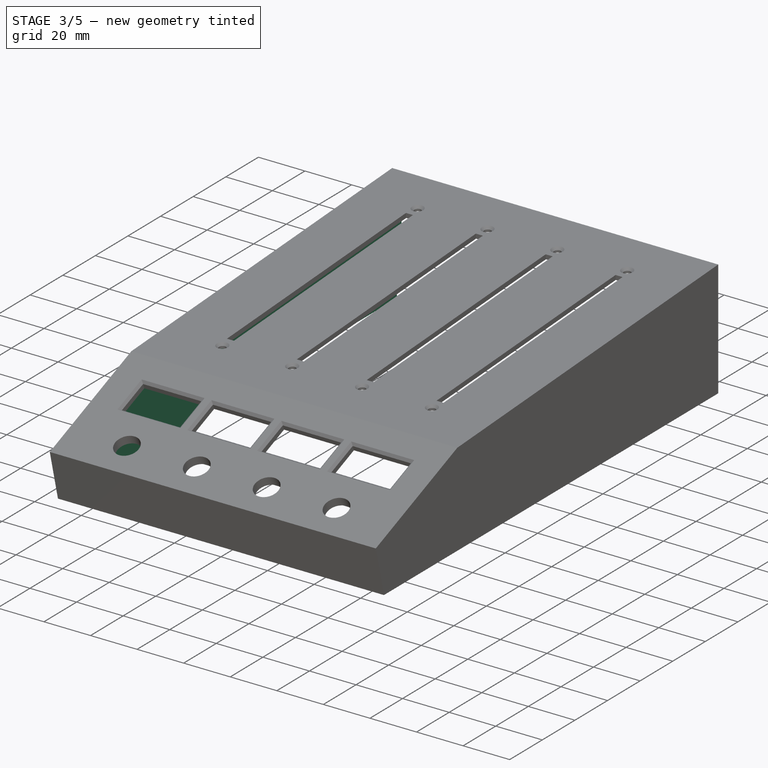
[diagram: stage 3 of 5 — iso view after this stage's code; geometry added in this stage tinted green]
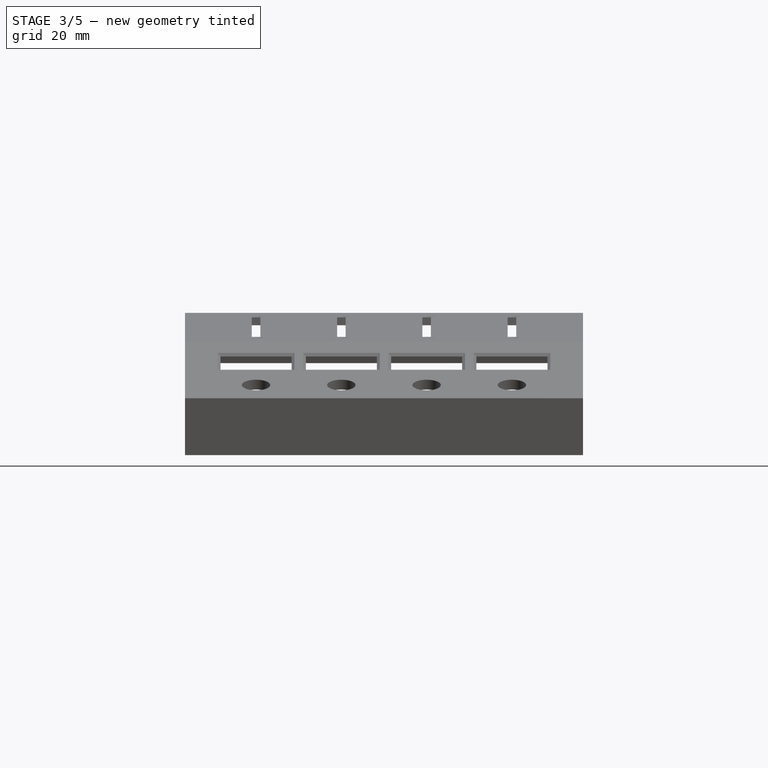
[diagram: stage 3 of 5 — front view after this stage's code; geometry added in this stage tinted green]
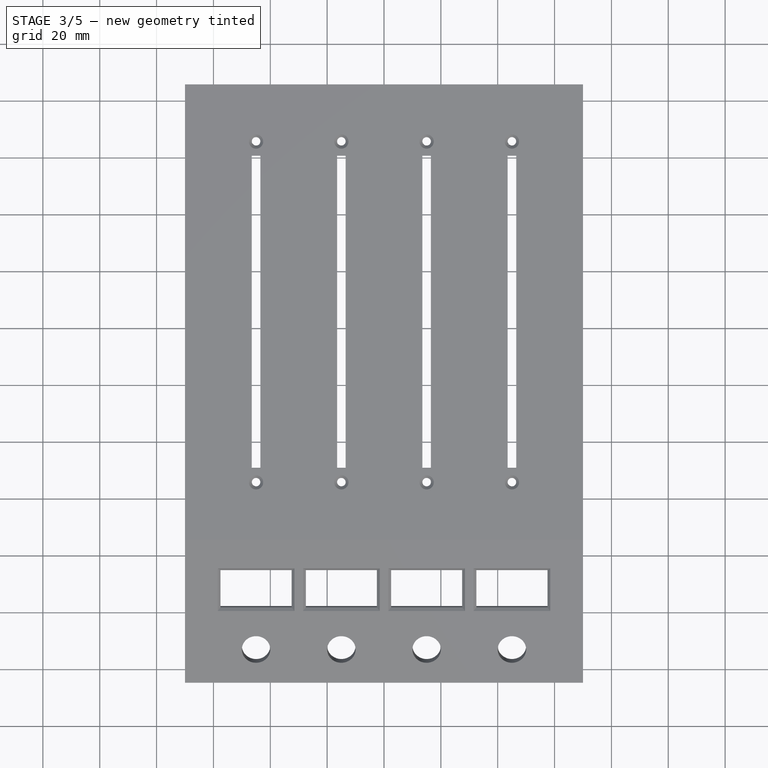
[diagram: stage 3 of 5 — top view after this stage's code; geometry added in this stage tinted green]
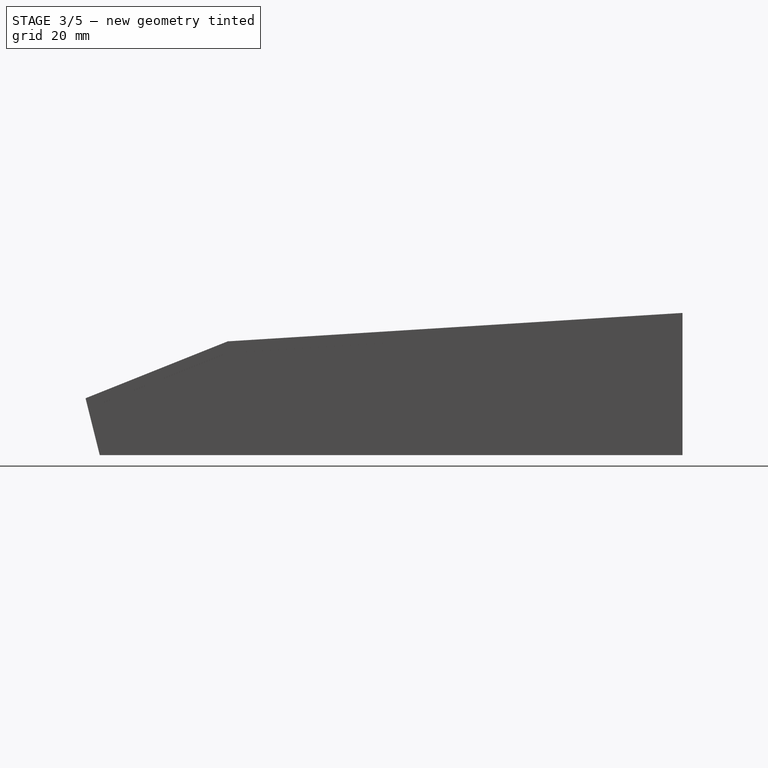
[diagram: stage 3 of 5 — right view after this stage's code; geometry added in this stage tinted green]
FEATURE [Sketcher::SketchObject] Sketch008
  ExternalGeometry = -> [Pocket006]
  FullyConstrained = true
  MapMode = 5
  Placement = pos=(0,-20,50) rot=(1,0,0;3.5221rad)
  Support = -> [Pocket006]
  sketch-geometry (32):
    g0: LineSegment StartX=51 StartY=41.5622 StartZ=0 EndX=39 EndY=41.5622 EndZ=0
    g1: LineSegment StartX=39 StartY=41.5622 StartZ=0 EndX=39 EndY=45.5622 EndZ=0
    g2: LineSegment StartX=39 StartY=45.5622 StartZ=0 EndX=51 EndY=45.5622 EndZ=0
    g3: LineSegment StartX=51 StartY=45.5622 StartZ=0 EndX=51 EndY=41.5622 EndZ=0
    g4: LineSegment StartX=21 StartY=41.5622 StartZ=0 EndX=9 EndY=41.5622 EndZ=0
    g5: LineSegment StartX=9 StartY=41.5622 StartZ=0 EndX=9 EndY=45.5622 EndZ=0
    g6: LineSegment StartX=9 StartY=45.5622 StartZ=0 EndX=21 EndY=45.5622 EndZ=0
    g7: LineSegment StartX=21 StartY=45.5622 StartZ=0 EndX=21 EndY=41.5622 EndZ=0
    g8: LineSegment StartX=-9 StartY=41.5622 StartZ=0 EndX=-21 EndY=41.5622 EndZ=0
    g9: LineSegment StartX=-21 StartY=41.5622 StartZ=0 EndX=-21 EndY=45.5622 EndZ=0
    g10: LineSegment StartX=-21 StartY=45.5622 StartZ=0 EndX=-9 EndY=45.5622 EndZ=0
    g11: LineSegment StartX=-9 StartY=45.5622 StartZ=0 EndX=-9 EndY=41.5622 EndZ=0
    g12: LineSegment StartX=-39 StartY=41.5622 StartZ=0 EndX=-51 EndY=41.5622 EndZ=0
    g13: LineSegment StartX=-51 StartY=41.5622 StartZ=0 EndX=-51 EndY=45.5622 EndZ=0
    g14: LineSegment StartX=-51 StartY=45.5622 StartZ=0 EndX=-39 EndY=45.5622 EndZ=0
    g15: LineSegment StartX=-39 StartY=45.5622 StartZ=0 EndX=-39 EndY=41.5622 EndZ=0
    g16: LineSegment StartX=22 StartY=65.5622 StartZ=0 EndX=8 EndY=65.5622 EndZ=0
    g17: LineSegment StartX=8 StartY=65.5622 StartZ=0 EndX=8 EndY=68.5622 EndZ=0
    g18: LineSegment StartX=8 StartY=68.5622 StartZ=0 EndX=22 EndY=68.5622 EndZ=0
    g19: LineSegment StartX=22 StartY=68.5622 StartZ=0 EndX=22 EndY=65.5622 EndZ=0
    g20: LineSegment StartX=52 StartY=65.5622 StartZ=0 EndX=38 EndY=65.5622 EndZ=0
    g21: LineSegment StartX=38 StartY=65.5622 StartZ=0 EndX=38 EndY=68.5622 EndZ=0
    g22: LineSegment StartX=38 StartY=68.5622 StartZ=0 EndX=52 EndY=68.5622 EndZ=0
    g23: LineSegment StartX=52 StartY=68.5622 StartZ=0 EndX=52 EndY=65.5622 EndZ=0
    g24: LineSegment StartX=-8 StartY=65.5622 StartZ=0 EndX=-22 EndY=65.5622 EndZ=0
    g25: LineSegment StartX=-22 StartY=65.5622 StartZ=0 EndX=-22 EndY=68.5622 EndZ=0
    g26: LineSegment StartX=-22 StartY=68.5622 StartZ=0 EndX=-8 EndY=68.5622 EndZ=0
    g27: LineSegment StartX=-8 StartY=68.5622 StartZ=0 EndX=-8 EndY=65.5622 EndZ=0
    g28: LineSegment StartX=-38 StartY=65.5622 StartZ=0 EndX=-52 EndY=65.5622 EndZ=0
    g29: LineSegment StartX=-52 StartY=65.5622 StartZ=0 EndX=-52 EndY=68.5622 EndZ=0
    g30: LineSegment StartX=-52 StartY=68.5622 StartZ=0 EndX=-38 EndY=68.5622 EndZ=0
    g31: LineSegment StartX=-38 StartY=68.5622 StartZ=0 EndX=-38 EndY=65.5622 EndZ=0
  constraints (96):
    c: Coincident(g0,g1)
    c: Coincident(g1,g2)
    c: Coincident(g2,g3)
    c: Coincident(g3,g0)
    c: Horizontal(g0)
    c: Horizontal(g2)
    c: Vertical(g1)
    c: Vertical(g3)
    c: Coincident(g4,g5)
    c: Coincident(g5,g6)
    c: Coincident(g6,g7)
    c: Coincident(g7,g4)
    c: Horizontal(g4)
    c: Horizontal(g6)
    c: Vertical(g5)
    c: Vertical(g7)
    c: Coincident(g8,g9)
    c: Coincident(g9,g10)
    c: Coincident(g10,g11)
    c: Coincident(g11,g8)
    c: Horizontal(g8)
    c: Horizontal(g10)
    c: Vertical(g9)
    c: Vertical(g11)
    c: Coincident(g12,g13)
    c: Coincident(g13,g14)
    c: Coincident(g14,g15)
    c: Coincident(g15,g12)
    c: Horizontal(g12)
    c: Horizontal(g14)
    c: Vertical(g13)
    c: Vertical(g15)
    c: DistanceX(g-8,g9) = 7
    c: DistanceX(g10,g-7) = 7
    c: DistanceX(g14,g-9) = 7
    c: DistanceX(g-10,g13) = 7
    c: DistanceX(g-3,g5) = 7
    c: DistanceX(g6,g-4) = 7
    c: DistanceX(g-5,g1) = 7
    c: DistanceX(g2,g-6) = 7
    c: DistanceY(g5,g5) = 4
    c: DistanceY(g9,g9) = 4
    c: DistanceY(g13,g13) = 4
    c: DistanceY(g1,g1) = 4
    c: DistanceY(g2,g-6) = 2
    c: DistanceY(g6,g-4) = 2
    c: DistanceY(g10,g-7) = 2
    c: DistanceY(g14,g-9) = 2
    c: Coincident(g16,g17)
    c: Coincident(g17,g18)
    c: Coincident(g18,g19)
    c: Coincident(g19,g16)
    c: Horizontal(g16)
    c: Horizontal(g18)
    c: Vertical(g17)
    c: Vertical(g19)
    c: PointOnObject(g16,g-12)
    c: Coincident(g20,g21)
    c: Coincident(g21,g22)
    c: Coincident(g22,g23)
    c: Coincident(g23,g20)
    c: Horizontal(g20)
    c: Horizontal(g22)
    c: Vertical(g21)
    c: Vertical(g23)
    c: PointOnObject(g20,g-11)
    c: Coincident(g24,g25)
    c: Coincident(g25,g26)
    c: Coincident(g26,g27)
    c: Coincident(g27,g24)
    c: Horizontal(g24)
    c: Horizontal(g26)
    c: Vertical(g25)
    c: Vertical(g27)
    c: PointOnObject(g24,g-13)
    c: Coincident(g28,g29)
    c: Coincident(g29,g30)
    c: Coincident(g30,g31)
    c: Coincident(g31,g28)
    c: Horizontal(g28)
    c: Horizontal(g30)
    c: Vertical(g29)
    c: Vertical(g31)
    c: PointOnObject(g28,g-14)
    c: DistanceX(g28,g-14) = 6
    c: DistanceX(g-14,g28) = 6
    c: DistanceX(g-13,g24) = 6
    c: DistanceX(g24,g-13) = 6
    c: DistanceX(g-12,g16) = 6
    c: DistanceX(g16,g-12) = 6
    c: DistanceX(g-11,g20) = 6
    c: DistanceX(g20,g-11) = 6
    c: DistanceY(g21,g21) = 3
    c: DistanceY(g17,g17) = 3
    c: DistanceY(g25,g25) = 3
    c: DistanceY(g29,g29) = 3
FEATURE [PartDesign::Pocket] Pocket007
  BaseFeature = -> Pocket006
  Length = 2
  Length2 = 100
  Profile = -> Sketch008
  Type = 0
FEATURE [PartDesign::Chamfer] Chamfer
  Angle = 45
  Base = -> Pocket007 [Edge155,Edge152,Edge156,Edge153,Edge154,Edge157,Edge158,Edge159,Edge165,Edge162,Edge163,Edge164,Edge167,Edge168,Edge169,Edge166]
  BaseFeature = -> Pocket007
  ChamferType = 0
  FlipDirection = false
  Size = 1
  Size2 = 1
  SupportTransform = false
FEATURE [PartDesign::Chamfer] Chamfer001
  Angle = 45
  Base = -> Chamfer [Edge65,Edge64,Edge53,Edge52,Edge42,Edge47,Edge54,Edge59]
  BaseFeature = -> Chamfer
  ChamferType = 0
  FlipDirection = false
  Size = 1
  Size2 = 1
  SupportTransform = false
FEATURE [Sketcher::SketchObject] Sketch009
  ExternalGeometry = -> [Chamfer001]
  FullyConstrained = true
  MapMode = 5
  Placement = pos=(-70,0,0) rot=(0.57735,-0.57735,-0.57735;2.0944rad)
  Support = -> [Chamfer001]
  sketch-geometry (5):
    g0: LineSegment StartX=-105 StartY=46 StartZ=0 EndX=55 EndY=36 EndZ=0
    g1: LineSegment StartX=55 StartY=36 StartZ=0 EndX=100.455 EndY=17.8182 EndZ=0
    g2: LineSegment StartX=100.455 StartY=17.8182 StartZ=0 EndX=96 EndY=0 EndZ=0
    g3: LineSegment StartX=96 StartY=0 StartZ=0 EndX=-105 EndY=0 EndZ=0
    g4: LineSegment StartX=-105 StartY=0 StartZ=0 EndX=-105 EndY=46 EndZ=0
  constraints (11):
    c: Coincident(g0,g-3)
    c: Coincident(g0,g-4)
    c: Coincident(g0,g1)
    c: Coincident(g1,g-5)
    c: Coincident(g1,g2)
    c: Coincident(g2,g-6)
    c: Coincident(g2,g3)
    c: Horizontal(g3)
    c: Coincident(g3,g4)
    c: Coincident(g4,g0)
    c: Vertical(g4)
FEATURE [PartDesign::Pad] Pad001
  BaseFeature = -> Chamfer001
  Direction = (1,1,1)
  Length = 4
  Length2 = 100
  Profile = -> Sketch009
  Reversed = true
  Type = 0
FEATURE [Sketcher::SketchObject] Sketch010
  ExternalGeometry = -> [Pad001]
  FullyConstrained = true
  MapMode = 5
  Placement = pos=(0,0,0) rot=(1,0,0;3.14159rad)
  Support = -> [Pad001]
  sketch-geometry (4):
    g0: LineSegment StartX=-68 StartY=-105 StartZ=0 EndX=68 EndY=-105 EndZ=0
    g1: LineSegment StartX=68 StartY=-105 StartZ=0 EndX=68 EndY=98 EndZ=0
    g2: LineSegment StartX=68 StartY=98 StartZ=0 EndX=-68 EndY=98 EndZ=0
    g3: LineSegment StartX=-68 StartY=98 StartZ=0 EndX=-68 EndY=-105 EndZ=0
  constraints (14):
    c: Coincident(g0,g1)
    c: Coincident(g1,g2)
    c: Coincident(g2,g3)
    c: Coincident(g3,g0)
    c: Horizontal(g0)
    c: Horizontal(g2)
    c: Vertical(g1)
    c: Vertical(g3)
    c: DistanceX(g-5,g-5) = 0
    c: DistanceX(g-5,g-5) = 0
    c: DistanceX(g-5,g2) = 2
    c: DistanceY(g2,g-3) = 2
    c: DistanceX(g1,g-4) = 2
    c: DistanceY(g0,g-5) = 0
FEATURE [PartDesign::Pocket] Pocket008
  BaseFeature = -> Pad001
  Length = 4
  Length2 = 100
  Profile = -> Sketch010
  Type = 0
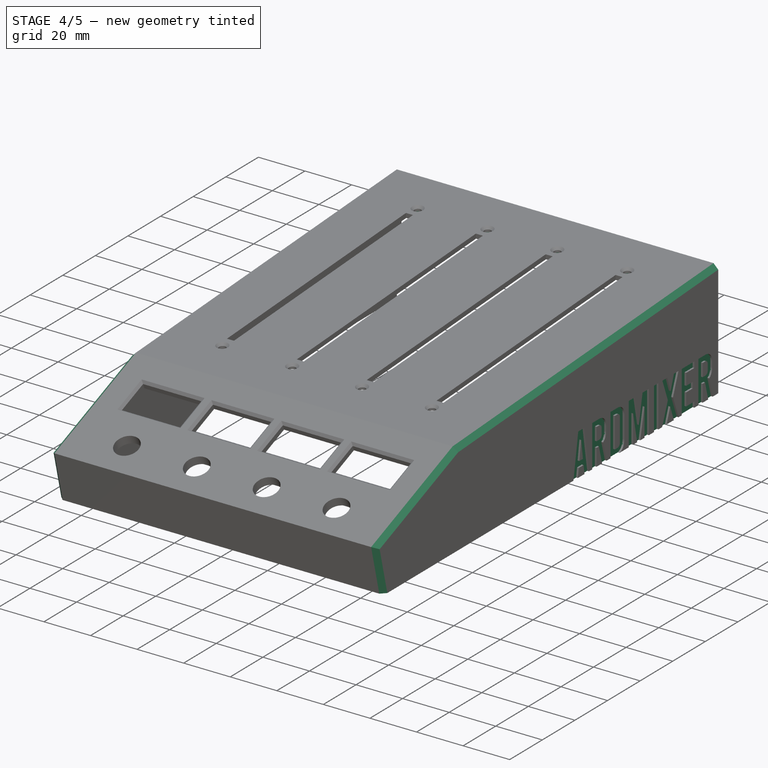
[diagram: stage 4 of 5 — iso view after this stage's code; geometry added in this stage tinted green]
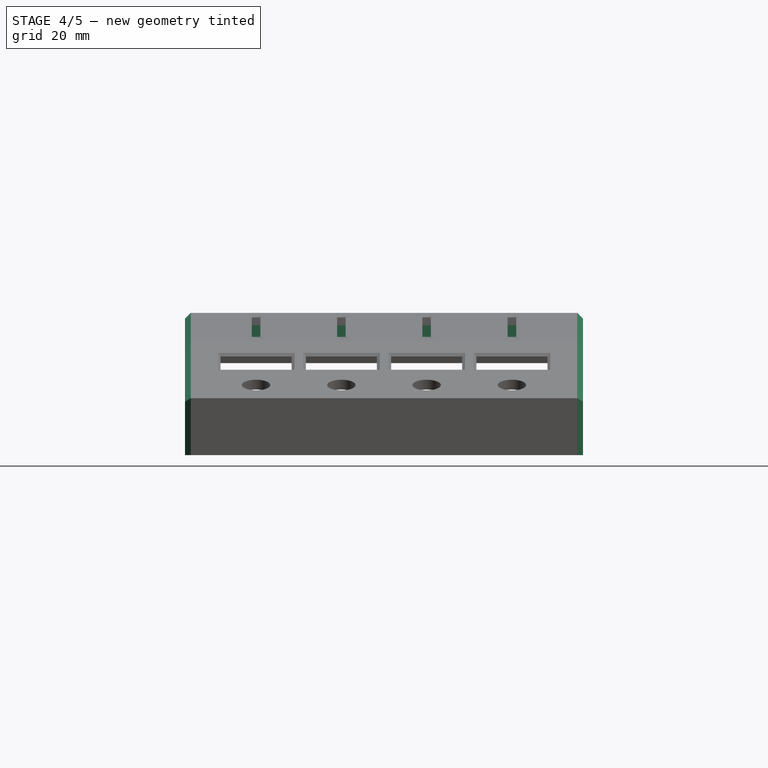
[diagram: stage 4 of 5 — front view after this stage's code; geometry added in this stage tinted green]
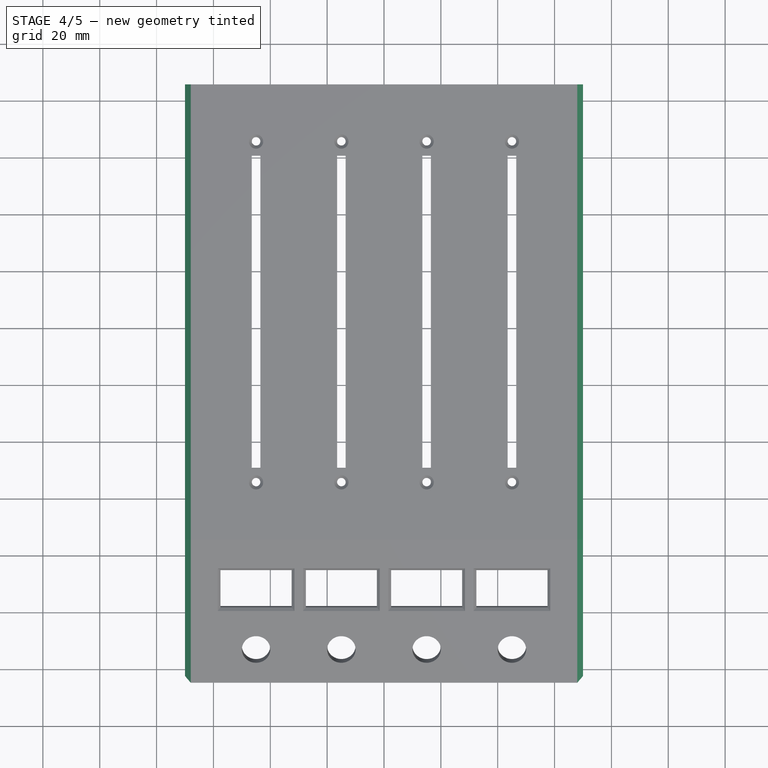
[diagram: stage 4 of 5 — top view after this stage's code; geometry added in this stage tinted green]
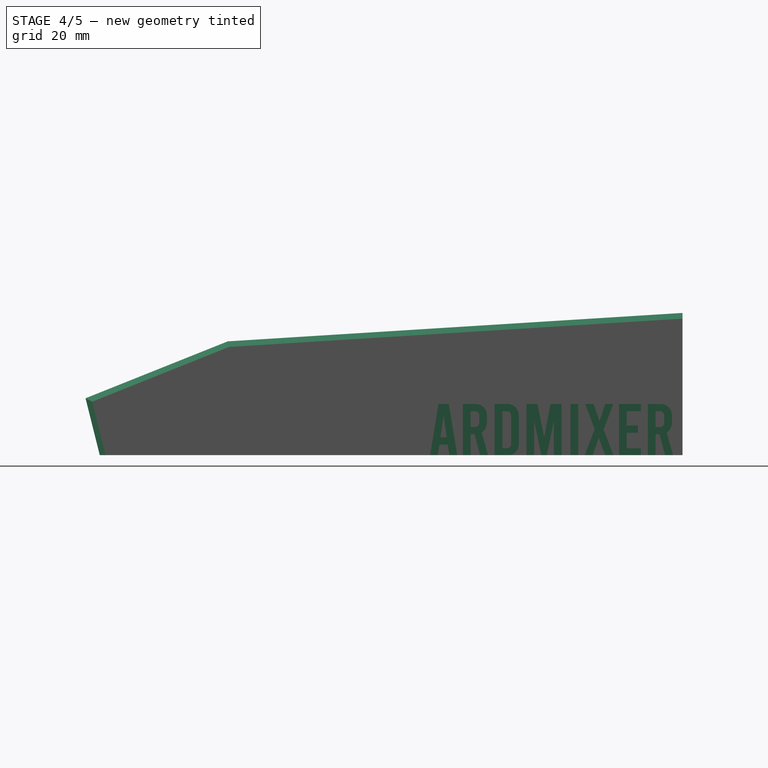
[diagram: stage 4 of 5 — right view after this stage's code; geometry added in this stage tinted green]
FEATURE [PartDesign::Chamfer] Chamfer002
  Angle = 45
  Base = -> Pocket008 [Edge50,Edge36,Edge2,Edge5,Edge68,Edge37]
  BaseFeature = -> Pocket008
  ChamferType = 0
  FlipDirection = false
  Size = 2
  Size2 = 1
  SupportTransform = false
FEATURE [Sketcher::SketchObject] Sketch013
  ExternalGeometry = -> [Chamfer002]
  FullyConstrained = false
  MapMode = 5
  Placement = pos=(-66,0,0) rot=(0.57735,0.57735,0.57735;2.0944rad)
  Support = -> [Chamfer002]
  sketch-geometry (4):
    g0: LineSegment StartX=105 StartY=46 StartZ=0 EndX=105 EndY=36 EndZ=0
    g1: LineSegment StartX=103 StartY=45.875 StartZ=0 EndX=105 EndY=46 EndZ=0
    g2: LineSegment StartX=103 StartY=45.875 StartZ=0 EndX=103 EndY=36 EndZ=0
    g3: LineSegment StartX=103 StartY=36 StartZ=0 EndX=105 EndY=36 EndZ=0
  constraints (10):
    c: Coincident(g-5,g0)
    c: PointOnObject(g0,g-5)
    c: PointOnObject(g1,g-4)
    c: Coincident(g1,g0)
    c: DistanceX(g1,g0) = 2
    c: Coincident(g1,g2)
    c: Coincident(g2,g3)
    c: Coincident(g3,g0)
    c: Vertical(g2)
    c: Horizontal(g3)
FEATURE [PartDesign::Pad] Pad002
  BaseFeature = -> Chamfer002
  Direction = (1,1,1)
  Length = 10
  Length2 = 100
  Profile = -> Sketch013
  Type = 3
  UpToFace = -> Chamfer002 [Face35]
FEATURE [Part::Part2DObjectPython] ShapeString  # Draft 2D object (typed FeaturePython)
  FontFile = <userpath>/Téléchargements/bebas/Bebas-Regular.ttf
  Placement = pos=(70.2363,15.5851,-0.148783) rot=(0.57735,0.57735,0.57735;2.0944rad)
  Size = 10
  String = ArdMixer
  Tracking = 0
FEATURE [PartDesign::Pocket] Pocket009
  BaseFeature = -> Pad002
  Length = 1
  Length2 = 100
  Profile = -> ShapeString
  Type = 0
FEATURE [Part::Part2DObjectPython] ShapeString001  # Draft 2D object (typed FeaturePython)
  FontFile = <userpath>/Téléchargements/bebas/Bebas-Regular.ttf
  Placement = pos=(-70,101.996,-0.251916) rot=(0.57735,-0.57735,-0.57735;2.0944rad)
  Size = 10
  String = ArdMixer
  Tracking = 0
FEATURE [PartDesign::Pocket] Pocket010
  BaseFeature = -> Pocket009
  Length = 1
  Length2 = 100
  Profile = -> ShapeString001
  Type = 0
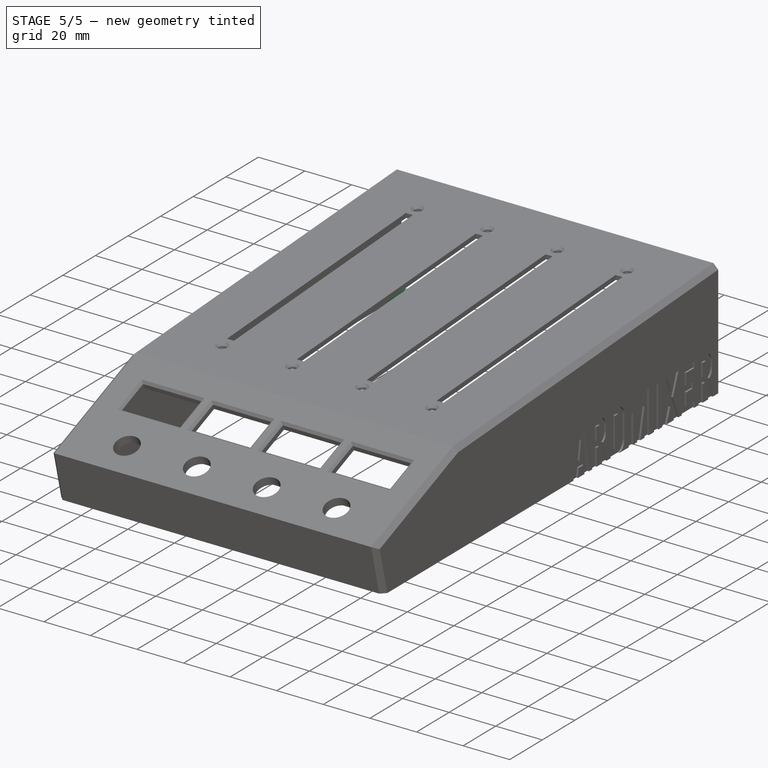
[diagram: stage 5 of 5 — iso view after this stage's code; geometry added in this stage tinted green]
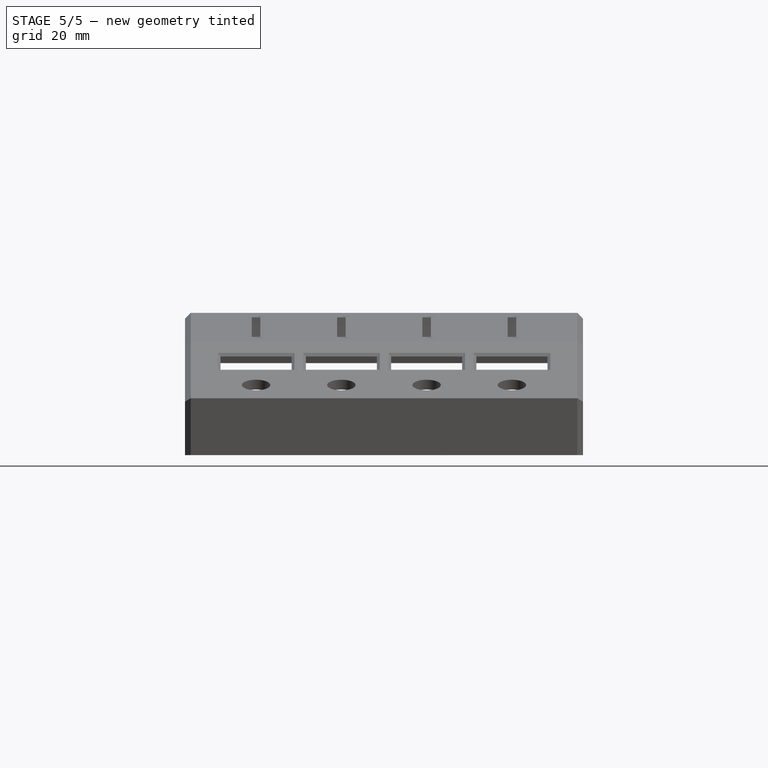
[diagram: stage 5 of 5 — front view after this stage's code; geometry added in this stage tinted green]
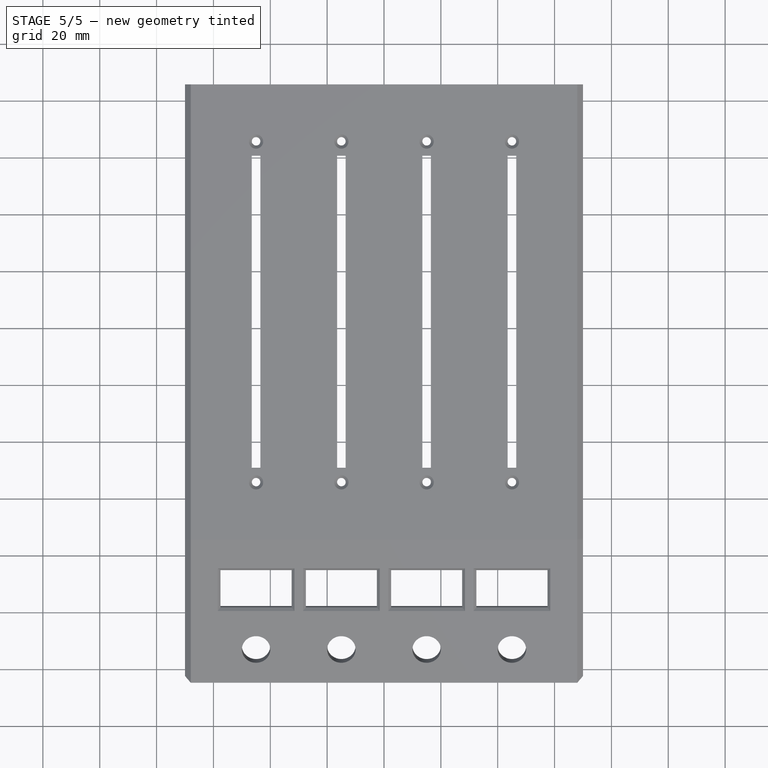
[diagram: stage 5 of 5 — top view after this stage's code; geometry added in this stage tinted green]
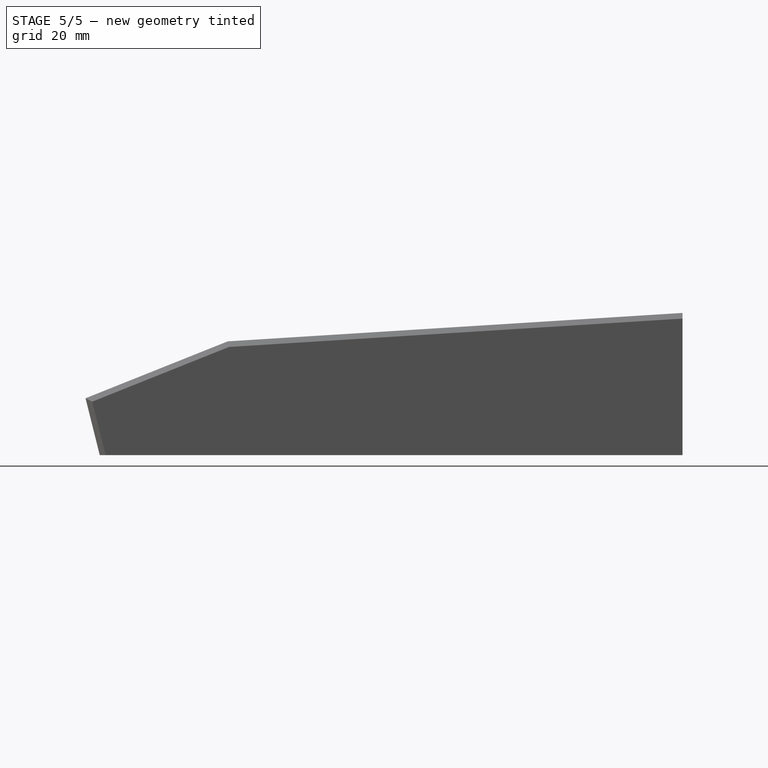
[diagram: stage 5 of 5 — right view after this stage's code; geometry added in this stage tinted green]
FEATURE [Sketcher::SketchObject] Sketch014
  ExternalGeometry = -> [Pocket010]
  FullyConstrained = true
  MapMode = 5
  Placement = pos=(0,0,4) rot=(1,0,0;3.14159rad)
  Support = -> [Pocket010]
  sketch-geometry (24):
    g0: LineSegment StartX=66 StartY=97 StartZ=0 EndX=60 EndY=97 EndZ=0
    g1: LineSegment StartX=60 StartY=97 StartZ=0 EndX=60 EndY=91 EndZ=0
    g2: LineSegment StartX=60 StartY=91 StartZ=0 EndX=66 EndY=91 EndZ=0
    g3: LineSegment StartX=66 StartY=91 StartZ=0 EndX=66 EndY=97 EndZ=0
    g4: LineSegment StartX=-66 StartY=97 StartZ=0 EndX=-60 EndY=97 EndZ=0
    g5: LineSegment StartX=-60 StartY=97 StartZ=0 EndX=-60 EndY=91 EndZ=0
    g6: LineSegment StartX=-60 StartY=91 StartZ=0 EndX=-66 EndY=91 EndZ=0
    g7: LineSegment StartX=-66 StartY=91 StartZ=0 EndX=-66 EndY=97 EndZ=0
    g8: LineSegment StartX=-66 StartY=-100 StartZ=0 EndX=-60 EndY=-100 EndZ=0
    g9: LineSegment StartX=-60 StartY=-100 StartZ=0 EndX=-60 EndY=-94 EndZ=0
    g10: LineSegment StartX=-60 StartY=-94 StartZ=0 EndX=-66 EndY=-94 EndZ=0
    g11: LineSegment StartX=-66 StartY=-94 StartZ=0 EndX=-66 EndY=-100 EndZ=0
    g12: LineSegment StartX=66 StartY=-100 StartZ=0 EndX=60 EndY=-100 EndZ=0
    g13: LineSegment StartX=60 StartY=-100 StartZ=0 EndX=60 EndY=-94 EndZ=0
    g14: LineSegment StartX=60 StartY=-94 StartZ=0 EndX=66 EndY=-94 EndZ=0
    g15: LineSegment StartX=66 StartY=-94 StartZ=0 EndX=66 EndY=-100 EndZ=0
    g16: LineSegment StartX=-66 StartY=2 StartZ=0 EndX=-60 EndY=2 EndZ=0
    g17: LineSegment StartX=-60 StartY=2 StartZ=0 EndX=-60 EndY=-4 EndZ=0
    g18: LineSegment StartX=-60 StartY=-4 StartZ=0 EndX=-66 EndY=-4 EndZ=0
    g19: LineSegment StartX=-66 StartY=-4 StartZ=0 EndX=-66 EndY=2 EndZ=0
    g20: LineSegment StartX=66 StartY=2 StartZ=0 EndX=60 EndY=2 EndZ=0
    g21: LineSegment StartX=60 StartY=2 StartZ=0 EndX=60 EndY=-4 EndZ=0
    g22: LineSegment StartX=60 StartY=-4 StartZ=0 EndX=66 EndY=-4 EndZ=0
    g23: LineSegment StartX=66 StartY=-4 StartZ=0 EndX=66 EndY=2 EndZ=0
  constraints (70):
    c: Coincident(g0,g1)
    c: Coincident(g1,g2)
    c: Coincident(g2,g3)
    c: Coincident(g3,g0)
    c: Horizontal(g0)
    c: Horizontal(g2)
    c: Vertical(g1)
    c: Vertical(g3)
    c: Coincident(g0,g-3)
    c: DistanceX(g2,g2) = 6
    c: DistanceY(g1,g1) = 6
    c: Coincident(g4,g5)
    c: Coincident(g5,g6)
    c: Coincident(g6,g7)
    c: Coincident(g7,g4)
    c: Horizontal(g4)
    c: Horizontal(g6)
    c: Vertical(g5)
    c: Vertical(g7)
    c: Coincident(g4,g-4)
    c: DistanceY(g5,g5) = 6
    c: DistanceX(g6,g6) = 6
    c: Coincident(g8,g9)
    c: Coincident(g9,g10)
    c: Coincident(g10,g11)
    c: Coincident(g11,g8)
    c: Horizontal(g8)
    c: Horizontal(g10)
    c: Vertical(g9)
    c: Vertical(g11)
    c: PointOnObject(g8,g-6)
    c: DistanceY(g-6,g8) = 5
    c: DistanceY(g9,g9) = 6
    c: DistanceX(g10,g10) = 6
    c: Coincident(g12,g13)
    c: Coincident(g13,g14)
    c: Coincident(g14,g15)
    c: Coincident(g15,g12)
    c: Horizontal(g12)
    c: Horizontal(g14)
    c: Vertical(g13)
    c: Vertical(g15)
    c: PointOnObject(g12,g-7)
    c: DistanceY(g13,g13) = 6
    c: DistanceX(g14,g14) = 6
    c: DistanceY(g-7,g12) = 5
    c: Coincident(g16,g17)
    c: Coincident(g17,g18)
    c: Coincident(g18,g19)
    c: Coincident(g19,g16)
    c: Horizontal(g16)
    c: Horizontal(g18)
    c: Vertical(g17)
    c: Vertical(g19)
    c: PointOnObject(g16,g-6)
    c: Coincident(g20,g21)
    c: Coincident(g21,g22)
    c: Coincident(g22,g23)
    c: Coincident(g23,g20)
    c: Horizontal(g20)
    c: Horizontal(g22)
    c: Vertical(g21)
    c: Vertical(g23)
    c: PointOnObject(g20,g-7)
    c: DistanceX(g16,g16) = 6
    c: DistanceX(g20,g20) = 6
    c: DistanceY(g17,g17) = 6
    c: DistanceY(g21,g21) = 6
    c: DistanceY(g10,g18) = 90
    c: DistanceY(g14,g22) = 90
FEATURE [PartDesign::Pad] Pad003
  BaseFeature = -> Pocket010
  Direction = (1,1,1)
  Length = 12
  Length2 = 100
  Profile = -> Sketch014
  Reversed = true
  Type = 0
FEATURE [Sketcher::SketchObject] Sketch015
  ExternalGeometry = -> [Pad003]
  FullyConstrained = true
  MapMode = 5
  Placement = pos=(0,0,4) rot=(1,0,0;3.14159rad)
  Support = -> [Pad003]
  sketch-geometry (6):
    g0: Circle CenterX=-63 CenterY=94 CenterZ=0 NormalX=0 NormalY=0 NormalZ=1 AngleXU=0 Radius=2
    g1: Circle CenterX=63 CenterY=94 CenterZ=0 NormalX=0 NormalY=0 NormalZ=1 AngleXU=0 Radius=2
    g2: Circle CenterX=63 CenterY=-1 CenterZ=0 NormalX=0 NormalY=0 NormalZ=1 AngleXU=0 Radius=2
    g3: Circle CenterX=-63 CenterY=-1 CenterZ=0 NormalX=0 NormalY=0 NormalZ=1 AngleXU=0 Radius=2
    g4: Circle CenterX=-63 CenterY=-97 CenterZ=0 NormalX=0 NormalY=0 NormalZ=1 AngleXU=0 Radius=2
    g5: Circle CenterX=63 CenterY=-97 CenterZ=0 NormalX=0 NormalY=0 NormalZ=1 AngleXU=0 Radius=2
  constraints (18):
    c: DistanceX(g-3,g0) = 3
    c: DistanceY(g0,g-3) = 3
    c: Radius(g0) = 2
    c: DistanceX(g1,g-4) = 3
    c: DistanceY(g1,g-4) = 3
    c: Radius(g1) = 2
    c: DistanceX(g2,g-5) = 3
    c: DistanceY(g-5,g2) = 3
    c: Radius(g2) = 2
    c: DistanceX(g-6,g3) = 3
    c: DistanceY(g-6,g3) = 3
    c: Radius(g3) = 2
    c: DistanceX(g-7,g4) = 3
    c: DistanceY(g-7,g4) = 3
    c: Radius(g4) = 2
    c: DistanceX(g5,g-8) = 3
    c: DistanceY(g5,g-8) = 3
    c: Radius(g5) = 2
FEATURE [PartDesign::Pocket] Pocket011
  BaseFeature = -> Pad003
  Length = 4
  Length2 = 100
  Profile = -> Sketch015
  Type = 0
FEATURE [Sketcher::SketchObject] Sketch016
  ExternalGeometry = -> [Pocket011]
  FullyConstrained = true
  MapMode = 5
  Placement = pos=(0,100,0) rot=(0,0.707107,0.707107;3.14159rad)
  Support = -> [Pocket011]
  sketch-geometry (6):
    g0: LineSegment StartX=-66 StartY=16 StartZ=0 EndX=-60 EndY=8 EndZ=0
    g1: LineSegment StartX=-60 StartY=8 StartZ=0 EndX=-60 EndY=16 EndZ=0
    g2: LineSegment StartX=-60 StartY=16 StartZ=0 EndX=-66 EndY=16 EndZ=0
    g3: LineSegment StartX=66 StartY=16 StartZ=0 EndX=60 EndY=8 EndZ=0
    g4: LineSegment StartX=60 StartY=8 StartZ=0 EndX=60 EndY=16 EndZ=0
    g5: LineSegment StartX=60 StartY=16 StartZ=0 EndX=66 EndY=16 EndZ=0
  constraints (14):
    c: Coincident(g0,g-3)
    c: PointOnObject(g0,g-4)
    c: Coincident(g0,g1)
    c: Coincident(g1,g-4)
    c: Coincident(g1,g2)
    c: Coincident(g2,g0)
    c: DistanceY(g0,g1) = 8
    c: Coincident(g3,g-5)
    c: PointOnObject(g3,g-6)
    c: Coincident(g3,g4)
    c: Coincident(g4,g-6)
    c: Coincident(g4,g5)
    c: Coincident(g5,g3)
    c: DistanceY(g3,g4) = 8
FEATURE [PartDesign::Pocket] Pocket012
  BaseFeature = -> Pocket011
  Length = 197
  Length2 = 100
  Profile = -> Sketch016
  Type = 0
FEATURE [PartDesign::Fillet] Fillet
  Base = -> Pocket012 [Edge1018,Edge1017,Edge1011,Edge1009,Edge1003,Edge993,Edge997,Edge996,Edge1000,Edge744]
  BaseFeature = -> Pocket012
  Radius = 2
  SupportTransform = false
FEATURE [PartDesign::Body] Body
  Group = -> [Sketch,Pad,Sketch001,Pocket,Sketch002,Pocket001,Sketch003,Pocket002,Sketch004,Pocket003,Sketch005,Pocket004,Sketch006,Pocket005,Sketch007,Pocket006,Sketch008,Pocket007,Chamfer,Chamfer001,Sketch009,Pad001,Sketch010,Pocket008,Chamfer002,Sketch013,Pad002,ShapeString,Pocket009,ShapeString001,Pocket010,Sketch014,Pad003,Sketch015,Pocket011,Sketch016,Pocket012,Fillet]
  Origin = -> Origin
  Tip = -> Fillet
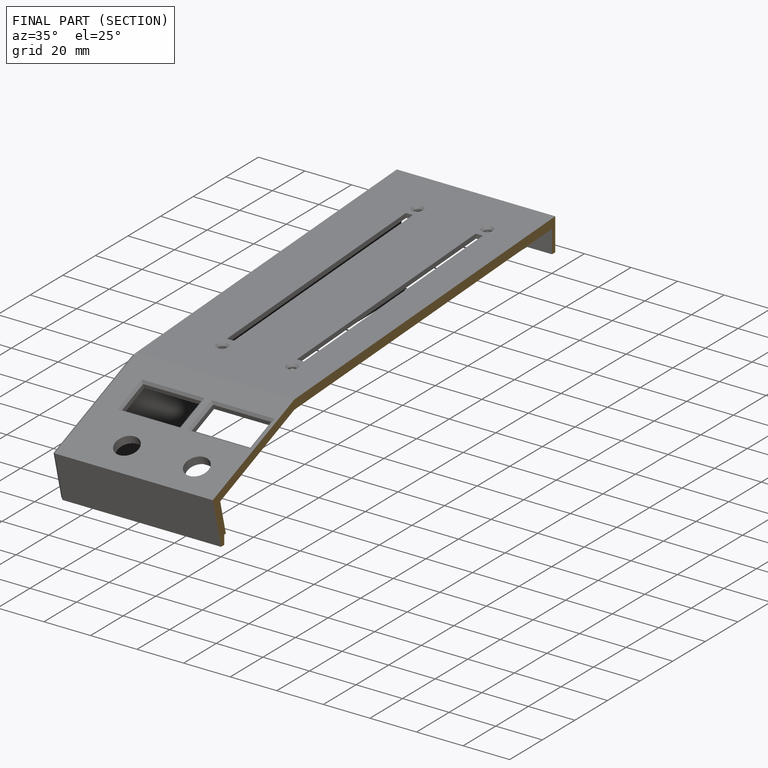
[diagram: finished part — half-section view (interior)]
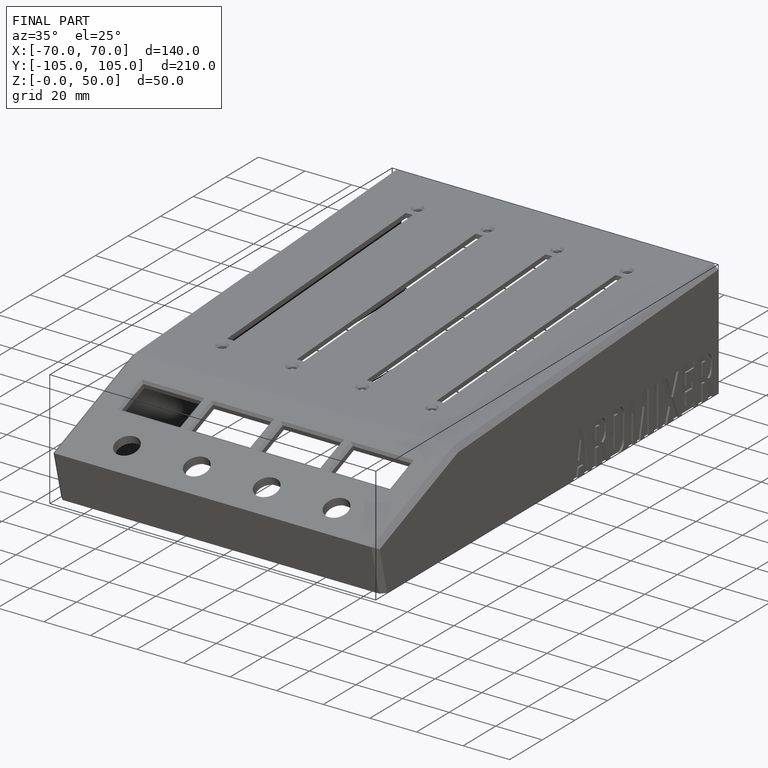
[diagram: finished part — iso view with bounding-box wireframe]
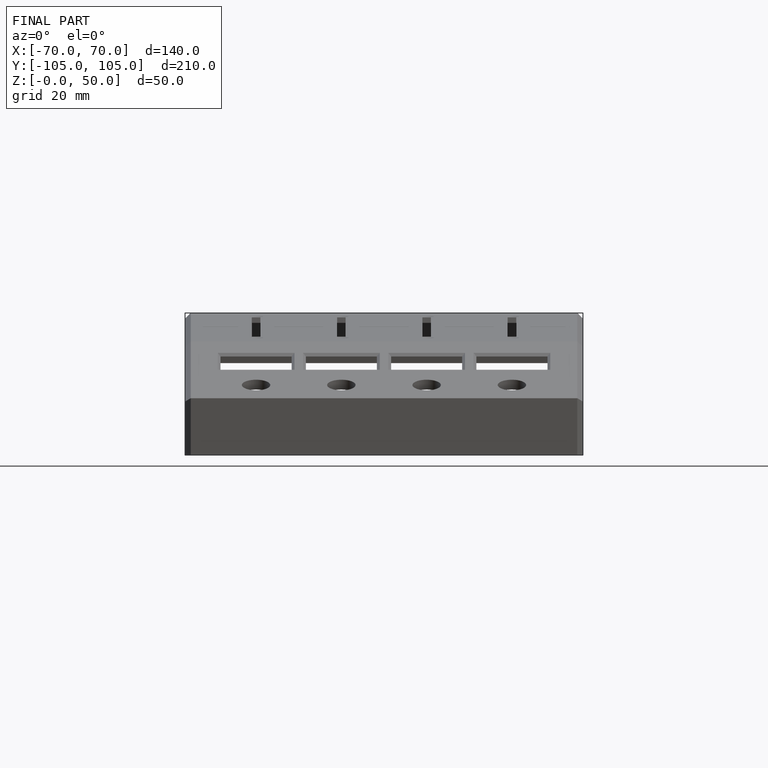
[diagram: finished part — front view with bounding-box wireframe]
